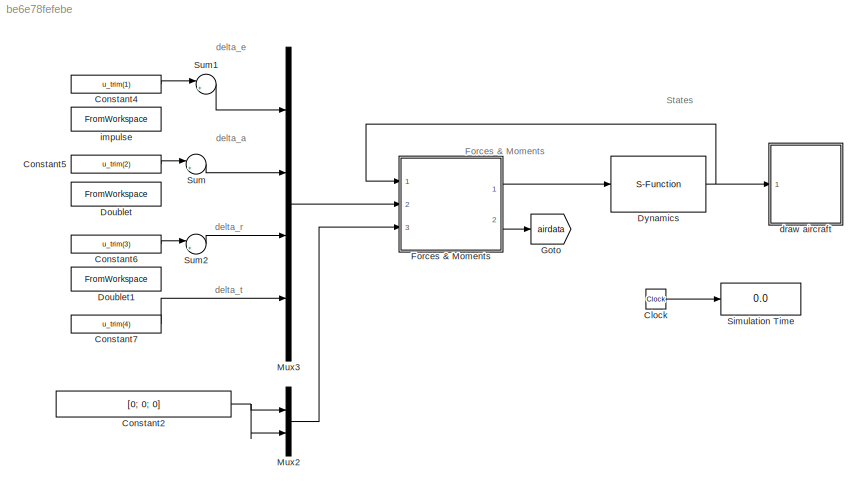
MODEL slx_be6e78fefebe
KIND model
CONFIG AbsTol = auto
CONFIG EnableMultiTasking = on
CONFIG FixedStep = auto
CONFIG InitFcn = addpath('../chap2')\naddpath('../parameters/')\naerosonde_parameters\nsimulation_parameters\nwind_parameters\naddpath('../chap3')\naddpath('../chap4')\naddpath('../chap5')\ncompute_trim2\n
CONFIG MaxStep = auto
CONFIG MinStep = auto
CONFIG RelTol = 1e-3
CONFIG SampleTimeConstraint = Unconstrained
CONFIG Solver = ode45
CONFIG SolverName = ode45
CONFIG StartTime = 0.0
CONFIG StopTime = 10000
BLOCK [Clock] Clock
BLOCK [Constant] Constant2
  Value = [0; 0; 0]
BLOCK [Constant] Constant4
  Value = u_trim(1)
BLOCK [Constant] Constant5
  Value = u_trim(2)
BLOCK [Constant] Constant6
  Value = u_trim(3)
BLOCK [Constant] Constant7
  Value = u_trim(4)
BLOCK [FromWorkspace] Doublet
  SampleTime = 0
  VariableName = [0, 0; 10.0, 0; 10.01, 35; 10.02, 35; 10.03, -35; 10.04, -35; 10.05, 0; 10.06, 0]
  ZeroCross = on
BLOCK [FromWorkspace] Doublet1
  SampleTime = 0
  VariableName = [0, 0; 10.0, 0; 10.01, 0.1; 10.5, 0.1; 10.51, -0.1; 11.0, -0.1; 11.01, 0; 11.5, 0]
  ZeroCross = on
BLOCK [S-Function] Dynamics
  EnableBusSupport = off
  FunctionName = mav_dynamics
  Parameters = MAV
  Ports = [1, 1]
  SFcnIsStateOwnerBlock = off
  SFunctionDeploymentMode = off
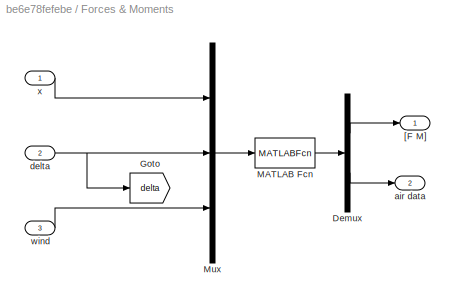
BLOCK [SubSystem] Forces & Moments
  Ports = [3, 2]
  RequestExecContextInheritance = off
BLOCK [Demux] Forces & Moments/Demux
  DisplayOption = bar
  Outputs = [6;6]
  Ports = [1, 2]
BLOCK [Goto] Forces & Moments/Goto
  GotoTag = delta
  TagVisibility = global
BLOCK [MATLABFcn] Forces & Moments/MATLAB Fcn
  MATLABFcn = forces_moments(u(1:12),u(13:16),u(17:22),MAV)
  OutputDimensions = 12
  Ports = [1, 1]
BLOCK [Mux] Forces & Moments/Mux
  DisplayOption = bar
  Inputs = 3
  Ports = [3, 1]
BLOCK [Outport] Forces & Moments/[F M]
  IconDisplay = Port number
BLOCK [Outport] Forces & Moments/air data
  IconDisplay = Port number
  Port = 2
BLOCK [Inport] Forces & Moments/delta
  IconDisplay = Port number
  Port = 2
BLOCK [Inport] Forces & Moments/wind
  IconDisplay = Port number
  Port = 3
BLOCK [Inport] Forces & Moments/x
  IconDisplay = Port number
BLOCK [Goto] Goto
  GotoTag = airdata
  TagVisibility = global
BLOCK [Mux] Mux2
  DisplayOption = bar
  Inputs = 2
  Ports = [2, 1]
BLOCK [Mux] Mux3
  DisplayOption = bar
  Ports = [4, 1]
BLOCK [Display] Simulation Time
  Decimation = 1
  Ports = [1]
BLOCK [Sum] Sum
  IconShape = round
  InputSameDT = off
  Inputs = |++
  OutDataTypeStr = Inherit: Inherit via internal rule
  Ports = [2, 1]
  SaturateOnIntegerOverflow = off
BLOCK [Sum] Sum1
  IconShape = round
  InputSameDT = off
  Inputs = |++
  OutDataTypeStr = Inherit: Inherit via internal rule
  Ports = [2, 1]
  SaturateOnIntegerOverflow = off
BLOCK [Sum] Sum2
  IconShape = round
  InputSameDT = off
  Inputs = |++
  OutDataTypeStr = Inherit: Inherit via internal rule
  Ports = [2, 1]
  SaturateOnIntegerOverflow = off
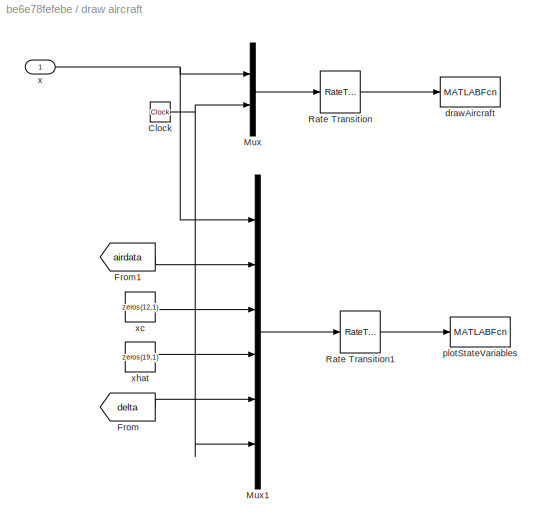
BLOCK [SubSystem] draw aircraft
  Ports = [1]
  RequestExecContextInheritance = off
BLOCK [Clock] draw aircraft/Clock
BLOCK [From] draw aircraft/From
  GotoTag = delta
  IconDisplay = Tag and signal name
  TagVisibility = global
BLOCK [From] draw aircraft/From1
  GotoTag = airdata
  IconDisplay = Tag and signal name
  TagVisibility = global
BLOCK [Mux] draw aircraft/Mux
  DisplayOption = bar
  Inputs = 2
  Ports = [2, 1]
BLOCK [Mux] draw aircraft/Mux1
  DisplayOption = bar
  Inputs = 6
  Ports = [6, 1]
BLOCK [RateTransition] draw aircraft/Rate Transition
  OutPortSampleTime = SIM.ts_plotting
BLOCK [RateTransition] draw aircraft/Rate Transition1
  OutPortSampleTime = SIM.ts_plotting
BLOCK [MATLABFcn] draw aircraft/drawAircraft
  MATLABFcn = drawAircraft(u)
  OutputDimensions = 0
  Ports = [1]
BLOCK [MATLABFcn] draw aircraft/plotStateVariables
  MATLABFcn = plotmavstatevariables(u)
  OutputDimensions = 0
  Ports = [1]
BLOCK [Inport] draw aircraft/x
  IconDisplay = Port number
BLOCK [Constant] draw aircraft/xc
  Value = zeros(12,1)
BLOCK [Constant] draw aircraft/xhat
  Value = zeros(19,1)
BLOCK [FromWorkspace] impulse
  SampleTime = 0
  VariableName = [0, 0; 10.0, 0; 10.01, 0.2; 10.5, 0.2; 10.51, 0.0; 13.0, 0.0]
  ZeroCross = on
ANNOTATION (root): Forces & Moments
ANNOTATION (root): States
ANNOTATION (root): delta_a
ANNOTATION (root): delta_e
ANNOTATION (root): delta_r
ANNOTATION (root): delta_t
LINE Clock:1 -> Simulation Time:1
NET Constant2:1 -> Mux2:1, Mux2:2
LINE Constant4:1 -> Sum1:1
LINE Constant5:1 -> Sum:1
LINE Constant6:1 -> Sum2:1
LINE Constant7:1 -> Mux3:4
NET Dynamics:1 -> Forces & Moments:1, draw aircraft:1
LINE Forces & Moments/Demux:1 -> Forces & Moments/[F M]:1
LINE Forces & Moments/Demux:2 -> Forces & Moments/air data:1
LINE Forces & Moments/MATLAB Fcn:1 -> Forces & Moments/Demux:1
LINE Forces & Moments/Mux:1 -> Forces & Moments/MATLAB Fcn:1
NET Forces & Moments/delta:1 -> Forces & Moments/Goto:1, Forces & Moments/Mux:2
LINE Forces & Moments/wind:1 -> Forces & Moments/Mux:3
LINE Forces & Moments/x:1 -> Forces & Moments/Mux:1
LINE Forces & Moments:1 -> Dynamics:1
LINE Forces & Moments:2 -> Goto:1
LINE Mux2:1 -> Forces & Moments:3
LINE Mux3:1 -> Forces & Moments:2
LINE Sum1:1 -> Mux3:1
LINE Sum2:1 -> Mux3:3
LINE Sum:1 -> Mux3:2
NET draw aircraft/Clock:1 -> draw aircraft/Mux1:6, draw aircraft/Mux:2
LINE draw aircraft/From1:1 -> draw aircraft/Mux1:2
LINE draw aircraft/From:1 -> draw aircraft/Mux1:5
LINE draw aircraft/Mux1:1 -> draw aircraft/Rate Transition1:1
LINE draw aircraft/Mux:1 -> draw aircraft/Rate Transition:1
LINE draw aircraft/Rate Transition1:1 -> draw aircraft/plotStateVariables:1
LINE draw aircraft/Rate Transition:1 -> draw aircraft/drawAircraft:1
NET draw aircraft/x:1 -> draw aircraft/Mux1:1, draw aircraft/Mux:1
LINE draw aircraft/xc:1 -> draw aircraft/Mux1:3
LINE draw aircraft/xhat:1 -> draw aircraft/Mux1:4
note: NET lines group one-source signal fan-out (src -> all destinations, sorted); 1:1 wires keep LINE
